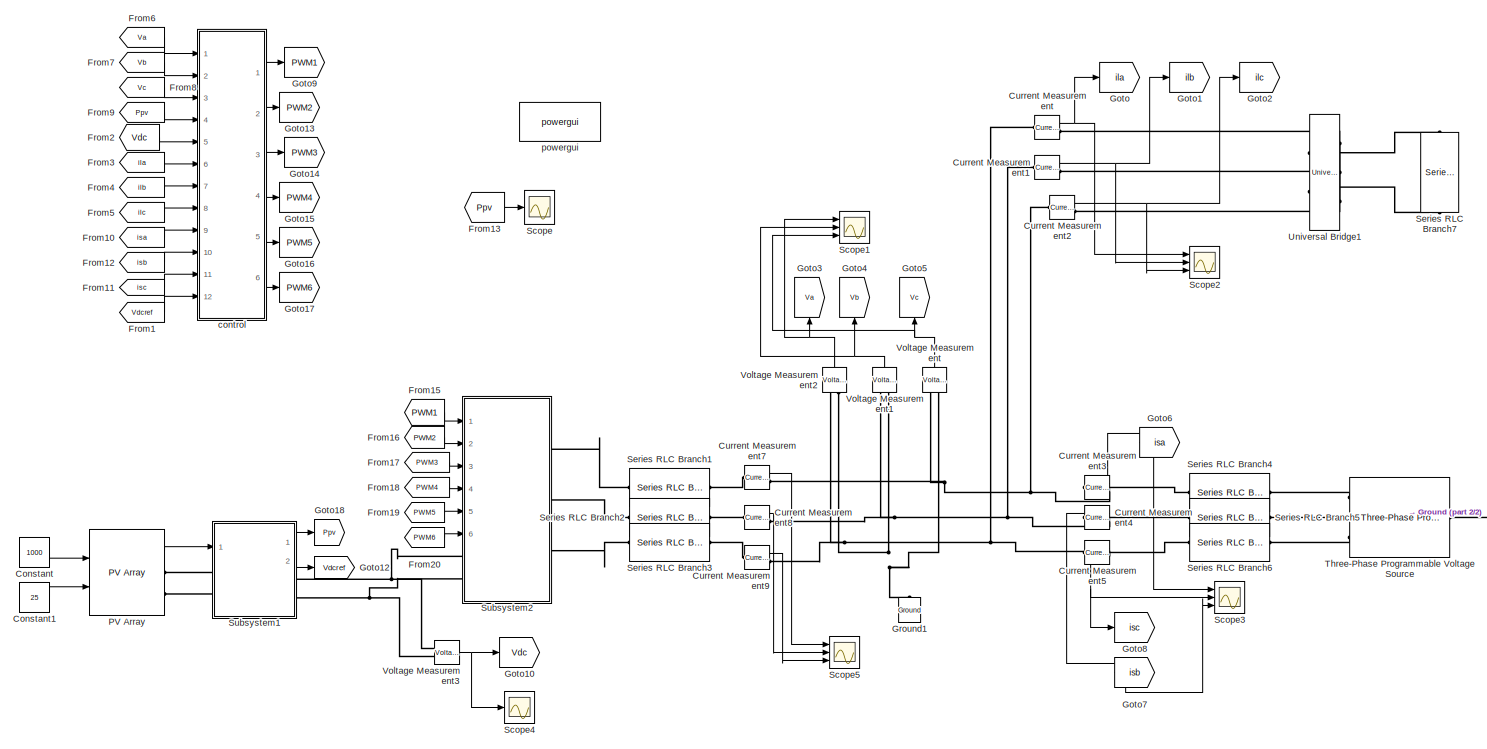
[diagram: root canvas - part 1/2, most of the canvas]
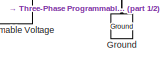
[diagram: root canvas - part 2/2, bottom right region]
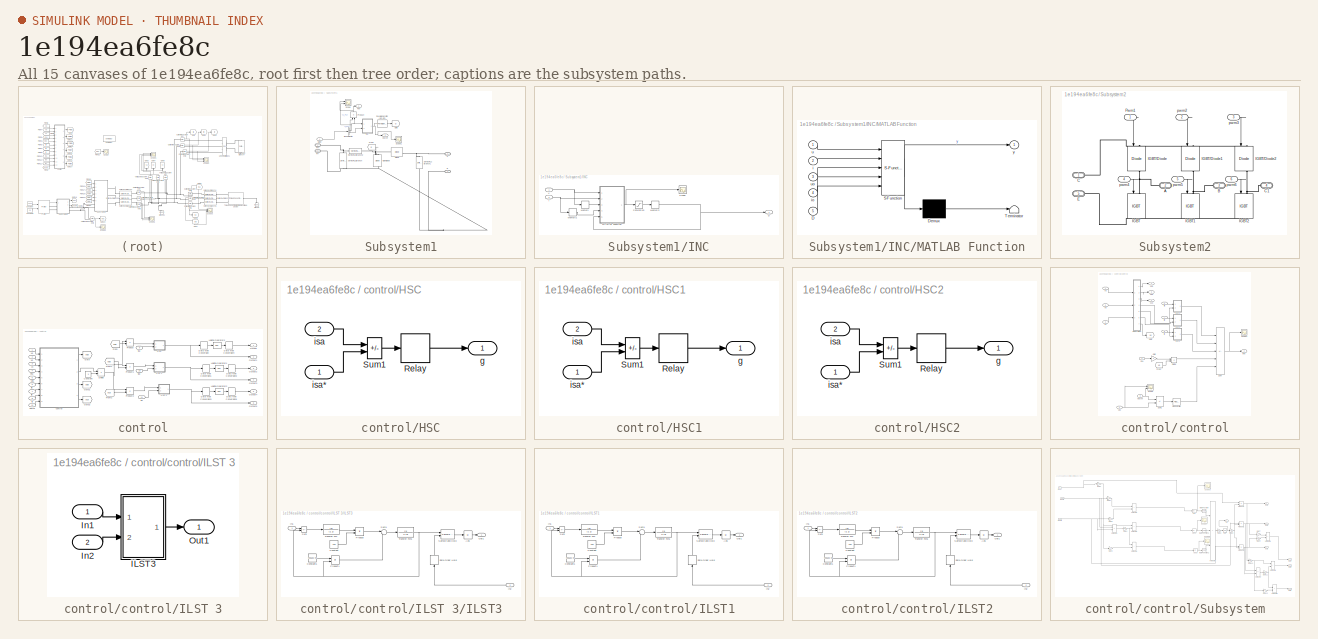
[diagram: thumbnail index - all 15 canvases of the model, root first then tree order]
MODEL slx_1e194ea6fe8c
KIND model
CONFIG AbsTol = auto
CONFIG EnableMultiTasking = off
CONFIG FixedStep = 1e-6
CONFIG MaxStep = auto
CONFIG MinStep = auto
CONFIG RelTol = 1e-3
CONFIG SampleTimeConstraint = Unconstrained
CONFIG SolverName = VariableStepAuto
CONFIG StartTime = 0.0
CONFIG StopTime = 10
BLOCK [Constant] Constant
  Value = 1000
BLOCK [Constant] Constant1
  Value = 25
BLOCK [Reference] Current Measurement  REF=spsCurrentMeasurementLib/Current Measurement
  Ports = [0, 1, 0, 0, 0, 1, 1]
  SourceBlock = spsCurrentMeasurementLib/Current Measurement
  SourceProductBaseCode = PS
  SourceType = Current Measurement
  UserDataPersistent = on
BLOCK [Reference] Current Measurement1  REF=spsCurrentMeasurementLib/Current Measurement
  Ports = [0, 1, 0, 0, 0, 1, 1]
  SourceBlock = spsCurrentMeasurementLib/Current Measurement
  SourceProductBaseCode = PS
  SourceType = Current Measurement
  UserDataPersistent = on
BLOCK [Reference] Current Measurement2  REF=spsCurrentMeasurementLib/Current Measurement
  Ports = [0, 1, 0, 0, 0, 1, 1]
  SourceBlock = spsCurrentMeasurementLib/Current Measurement
  SourceProductBaseCode = PS
  SourceType = Current Measurement
  UserDataPersistent = on
BLOCK [Reference] Current Measurement3  REF=spsCurrentMeasurementLib/Current Measurement
  NameLocation = top
  Ports = [0, 1, 0, 0, 0, 1, 1]
  SourceBlock = spsCurrentMeasurementLib/Current Measurement
  SourceProductBaseCode = PS
  SourceType = Current Measurement
  UserDataPersistent = on
BLOCK [Reference] Current Measurement4  REF=spsCurrentMeasurementLib/Current Measurement
  NameLocation = top
  Ports = [0, 1, 0, 0, 0, 1, 1]
  SourceBlock = spsCurrentMeasurementLib/Current Measurement
  SourceProductBaseCode = PS
  SourceType = Current Measurement
  UserDataPersistent = on
BLOCK [Reference] Current Measurement5  REF=spsCurrentMeasurementLib/Current Measurement
  NameLocation = top
  Ports = [0, 1, 0, 0, 0, 1, 1]
  SourceBlock = spsCurrentMeasurementLib/Current Measurement
  SourceProductBaseCode = PS
  SourceType = Current Measurement
  UserDataPersistent = on
BLOCK [Reference] Current Measurement7  REF=spsCurrentMeasurementLib/Current Measurement
  Ports = [0, 1, 0, 0, 0, 1, 1]
  SourceBlock = spsCurrentMeasurementLib/Current Measurement
  SourceProductBaseCode = PS
  SourceType = Current Measurement
  UserDataPersistent = on
BLOCK [Reference] Current Measurement8  REF=spsCurrentMeasurementLib/Current Measurement
  Ports = [0, 1, 0, 0, 0, 1, 1]
  SourceBlock = spsCurrentMeasurementLib/Current Measurement
  SourceProductBaseCode = PS
  SourceType = Current Measurement
  UserDataPersistent = on
BLOCK [Reference] Current Measurement9  REF=spsCurrentMeasurementLib/Current Measurement
  Ports = [0, 1, 0, 0, 0, 1, 1]
  SourceBlock = spsCurrentMeasurementLib/Current Measurement
  SourceProductBaseCode = PS
  SourceType = Current Measurement
  UserDataPersistent = on
BLOCK [From] From1
  GotoTag = Vdcref
BLOCK [From] From10
  GotoTag = isa
BLOCK [From] From11
  GotoTag = isc
BLOCK [From] From12
  GotoTag = isb
BLOCK [From] From13
  GotoTag = Ppv
BLOCK [From] From15
  GotoTag = PWM1
BLOCK [From] From16
  GotoTag = PWM2
BLOCK [From] From17
  GotoTag = PWM3
BLOCK [From] From18
  GotoTag = PWM4
BLOCK [From] From19
  GotoTag = PWM5
BLOCK [From] From2
  GotoTag = Vdc
BLOCK [From] From20
  GotoTag = PWM6
BLOCK [From] From3
  GotoTag = ila
BLOCK [From] From4
  GotoTag = ilb
BLOCK [From] From5
  GotoTag = ilc
BLOCK [From] From6
  GotoTag = Va
BLOCK [From] From7
  GotoTag = Vb
BLOCK [From] From8
  GotoTag = Vc
BLOCK [From] From9
  GotoTag = Ppv
BLOCK [Goto] Goto
  GotoTag = ila
BLOCK [Goto] Goto1
  GotoTag = ilb
BLOCK [Goto] Goto10
  GotoTag = Vdc
BLOCK [Goto] Goto12
  GotoTag = Vdcref
BLOCK [Goto] Goto13
  GotoTag = PWM2
BLOCK [Goto] Goto14
  GotoTag = PWM3
BLOCK [Goto] Goto15
  GotoTag = PWM4
BLOCK [Goto] Goto16
  GotoTag = PWM5
BLOCK [Goto] Goto17
  GotoTag = PWM6
BLOCK [Goto] Goto18
  GotoTag = Ppv
BLOCK [Goto] Goto2
  GotoTag = ilc
BLOCK [Goto] Goto3
  GotoTag = Va
  NameLocation = right
BLOCK [Goto] Goto4
  GotoTag = Vb
  NameLocation = right
BLOCK [Goto] Goto5
  GotoTag = Vc
  NameLocation = right
BLOCK [Goto] Goto6
  GotoTag = isa
BLOCK [Goto] Goto7
  GotoTag = isb
BLOCK [Goto] Goto8
  GotoTag = isc
BLOCK [Goto] Goto9
  GotoTag = PWM1
BLOCK [Reference] Ground  REF=spsGroundLib/Ground
  NameLocation = right
  Ports = [0, 0, 0, 0, 0, 1]
  SourceBlock = spsGroundLib/Ground
  SourceProductBaseCode = PS
  SourceType = Ground
BLOCK [Reference] Ground1  REF=spsGroundLib/Ground
  NameLocation = right
  Ports = [0, 0, 0, 0, 0, 1]
  SourceBlock = spsGroundLib/Ground
  SourceProductBaseCode = PS
  SourceType = Ground
BLOCK [Reference] PV Array  REF=spsPVArrayLib/PV Array
  Ports = [2, 1, 0, 0, 0, 0, 2]
  SourceBlock = spsPVArrayLib/PV Array
  SourceProductBaseCode = PS
  SourceType = PV array
BLOCK [Scope] Scope
  Floating = off
  NumInputPorts = 1
  Ports = [1]
  ScopeSpecificationString = Simulink.scopes.TimeScopeBlockCfg('CurrentConfiguration', extmgr.ConfigurationSet(extmgr.Configuration('Core','General UI',true),extmgr.Configuration('Core','Source UI',true),extmgr.Configuration('Sources','WiredSimulink',true,'DataLoggingVariableName','ScopeData1'),extmgr.Configuration('Visuals','Time Domain',true,'SerializedDisplays',{struct('MinYLimReal','-53729.06917','MaxYLimReal','116584.042...<+1542ch>
BLOCK [Scope] Scope1
  Floating = off
  NumInputPorts = 3
  Ports = [3]
  ScopeSpecificationString = Simulink.scopes.TimeScopeBlockCfg('CurrentConfiguration', extmgr.ConfigurationSet(extmgr.Configuration('Core','General UI',true),extmgr.Configuration('Core','Source UI',true),extmgr.Configuration('Sources','WiredSimulink',true,'DataLoggingVariableName','ScopeData1'),extmgr.Configuration('Visuals','Time Domain',true,'SerializedDisplays',{struct('MinYLimReal','-40.95601','MaxYLimReal','41.73398','YL...<+2840ch>
BLOCK [Scope] Scope2
  Floating = off
  NumInputPorts = 3
  Ports = [3]
  ScopeSpecificationString = Simulink.scopes.TimeScopeBlockCfg('CurrentConfiguration', extmgr.ConfigurationSet(extmgr.Configuration('Core','General UI',true),extmgr.Configuration('Core','Source UI',true),extmgr.Configuration('Sources','WiredSimulink',true,'DataLoggingVariableName','ScopeData2'),extmgr.Configuration('Visuals','Time Domain',true,'SerializedDisplays',{struct('MinYLimReal','-56.02248','MaxYLimReal','53.19966','YL...<+2864ch>
BLOCK [Scope] Scope3
  Floating = off
  NumInputPorts = 3
  Ports = [3]
  ScopeSpecificationString = Simulink.scopes.TimeScopeBlockCfg('CurrentConfiguration', extmgr.ConfigurationSet(extmgr.Configuration('Core','General UI',true),extmgr.Configuration('Core','Source UI',true),extmgr.Configuration('Sources','WiredSimulink',true,'DataLoggingVariableName','ScopeData3'),extmgr.Configuration('Visuals','Time Domain',true,'SerializedDisplays',{struct('MinYLimReal','-60.28132','MaxYLimReal','62.87009','YL...<+2892ch>
BLOCK [Scope] Scope4
  Floating = off
  NumInputPorts = 1
  Ports = [1]
  ScopeSpecificationString = Simulink.scopes.TimeScopeBlockCfg('CurrentConfiguration', extmgr.ConfigurationSet(extmgr.Configuration('Core','General UI',true),extmgr.Configuration('Core','Source UI',true),extmgr.Configuration('Sources','WiredSimulink',true,'DataLoggingVariableName','ScopeData1'),extmgr.Configuration('Visuals','Time Domain',true,'SerializedDisplays',{struct('MinYLimReal','-14.53089','MaxYLimReal','130.77798','Y...<+1540ch>
BLOCK [Scope] Scope5
  Floating = off
  NumInputPorts = 3
  Ports = [3]
  ScopeSpecificationString = Simulink.scopes.TimeScopeBlockCfg('CurrentConfiguration', extmgr.ConfigurationSet(extmgr.Configuration('Core','General UI',true),extmgr.Configuration('Core','Source UI',true),extmgr.Configuration('Sources','WiredSimulink',true,'DataLoggingVariableName','ScopeData5'),extmgr.Configuration('Visuals','Time Domain',true,'SerializedDisplays',{struct('MinYLimReal','-25.56295','MaxYLimReal','22.51185','YL...<+2841ch>
BLOCK [Reference] Series RLC Branch1  REF=spsSeriesRLCBranchLib/Series RLC Branch
  Ports = [0, 0, 0, 0, 0, 1, 1]
  SourceBlock = spsSeriesRLCBranchLib/Series RLC Branch
  SourceProductBaseCode = PS
  SourceType = Series RLC Branch
BLOCK [Reference] Series RLC Branch2  REF=spsSeriesRLCBranchLib/Series RLC Branch
  Ports = [0, 0, 0, 0, 0, 1, 1]
  SourceBlock = spsSeriesRLCBranchLib/Series RLC Branch
  SourceProductBaseCode = PS
  SourceType = Series RLC Branch
BLOCK [Reference] Series RLC Branch3  REF=spsSeriesRLCBranchLib/Series RLC Branch
  Ports = [0, 0, 0, 0, 0, 1, 1]
  SourceBlock = spsSeriesRLCBranchLib/Series RLC Branch
  SourceProductBaseCode = PS
  SourceType = Series RLC Branch
BLOCK [Reference] Series RLC Branch4  REF=spsSeriesRLCBranchLib/Series RLC Branch
  Ports = [0, 0, 0, 0, 0, 1, 1]
  SourceBlock = spsSeriesRLCBranchLib/Series RLC Branch
  SourceProductBaseCode = PS
  SourceType = Series RLC Branch
BLOCK [Reference] Series RLC Branch5  REF=spsSeriesRLCBranchLib/Series RLC Branch
  Ports = [0, 0, 0, 0, 0, 1, 1]
  SourceBlock = spsSeriesRLCBranchLib/Series RLC Branch
  SourceProductBaseCode = PS
  SourceType = Series RLC Branch
BLOCK [Reference] Series RLC Branch6  REF=spsSeriesRLCBranchLib/Series RLC Branch
  Ports = [0, 0, 0, 0, 0, 1, 1]
  SourceBlock = spsSeriesRLCBranchLib/Series RLC Branch
  SourceProductBaseCode = PS
  SourceType = Series RLC Branch
BLOCK [Reference] Series RLC Branch7  REF=spsSeriesRLCBranchLib/Series RLC Branch
  NameLocation = right
  Ports = [0, 0, 0, 0, 0, 1, 1]
  SourceBlock = spsSeriesRLCBranchLib/Series RLC Branch
  SourceProductBaseCode = PS
  SourceType = Series RLC Branch
BLOCK [SubSystem] Subsystem1
  Ports = [1, 2, 0, 0, 0, 2, 2]
  RequestExecContextInheritance = off
BLOCK [BusSelector] Subsystem1/Bus Selector
  OutputSignals = V_PV,I_PV
  Ports = [1, 2]
BLOCK [PMIOPort] Subsystem1/C
  NameLocation = top
  Port = 3
  Side = Right
BLOCK [Reference] Subsystem1/Diode  REF=spsDiodeLib/Diode
  Ports = [0, 1, 0, 0, 0, 1, 1]
  SourceBlock = spsDiodeLib/Diode
  SourceProductBaseCode = PS
  SourceType = Diode
BLOCK [PMIOPort] Subsystem1/E
  NameLocation = top
  Port = 4
  Side = Right
BLOCK [From] Subsystem1/From
  GotoTag = G
BLOCK [Goto] Subsystem1/Goto
  GotoTag = G
BLOCK [Reference] Subsystem1/IGBT//Diode  REF=spsIGBTDiodeLib/IGBT//Diode
  NameLocation = left
  Ports = [1, 1, 0, 0, 0, 1, 1]
  SourceBlock = spsIGBTDiodeLib/IGBT//Diode
  SourceProductBaseCode = PS
  SourceType = IGBT/Diode
BLOCK [SubSystem] Subsystem1/INC
  Ports = [2, 1]
  RequestExecContextInheritance = off
BLOCK [Outport] Subsystem1/INC/D
BLOCK [Inport] Subsystem1/INC/I
  Port = 2
BLOCK [SubSystem] Subsystem1/INC/MATLAB Function
  ErrorFcn = Stateflow.Translate.translate
  PermitHierarchicalResolution = ExplicitOnly
  Ports = [5, 1]
  RequestExecContextInheritance = off
  SFBlockType = MATLAB Function
  TreatAsAtomicUnit = on
BLOCK [Demux] Subsystem1/INC/MATLAB Function/ Demux 
  Outputs = 1
  Ports = [1, 1]
BLOCK [S-Function] Subsystem1/INC/MATLAB Function/ SFunction 
  EnableBusSupport = on
  FunctionName = sf_sfun
  PortCounts = [5 2]
  Ports = [5, 2]
  SFcnIsStateOwnerBlock = off
  SFunctionDeploymentMode = off
  Tag = Stateflow S-Function 2
BLOCK [Terminator] Subsystem1/INC/MATLAB Function/ Terminator 
BLOCK [Inport] Subsystem1/INC/MATLAB Function/D
  Port = 5
BLOCK [Inport] Subsystem1/INC/MATLAB Function/i
  Port = 2
BLOCK [Inport] Subsystem1/INC/MATLAB Function/io
  Port = 4
BLOCK [Inport] Subsystem1/INC/MATLAB Function/u
BLOCK [Inport] Subsystem1/INC/MATLAB Function/uo
  Port = 3
BLOCK [Outport] Subsystem1/INC/MATLAB Function/y
BLOCK [Memory] Subsystem1/INC/Memory
  InheritSampleTime = on
BLOCK [Memory] Subsystem1/INC/Memory1
  InheritSampleTime = on
BLOCK [Memory] Subsystem1/INC/Memory2
  InheritSampleTime = on
BLOCK [Saturate] Subsystem1/INC/Saturation
  LowerLimit = 0
  UpperLimit = 0.9
BLOCK [Scope] Subsystem1/INC/Scope
  Floating = off
  NumInputPorts = 1
  Ports = [1]
  ScopeSpecificationString = Simulink.scopes.TimeScopeBlockCfg('CurrentConfiguration', extmgr.ConfigurationSet(extmgr.Configuration('Core','General UI',true),extmgr.Configuration('Core','Source UI',true),extmgr.Configuration('Sources','WiredSimulink',true,'DataLoggingVariableName','ScopeData4','DataLoggingSaveFormat','Array','DataLoggingDecimation','1','DataLoggingDecimateData',true),extmgr.Configuration('Visuals','Time Domai...<+1660ch>
BLOCK [Inport] Subsystem1/INC/V
BLOCK [Inport] Subsystem1/Mppt
BLOCK [PMIOPort] Subsystem1/PV+
  Side = Left
BLOCK [PMIOPort] Subsystem1/PV-
  Port = 2
  Side = Left
BLOCK [Reference] Subsystem1/PWM Generator (DC-DC)  REF=spsPWMGeneratorDCDCLib/PWM Generator
(DC-DC)
  Ports = [1, 1]
  SourceBlock = spsPWMGeneratorDCDCLib/PWM Generator\n(DC-DC)
  SourceProductBaseCode = PS
  SourceType = PWM Generator (DC-DC)
BLOCK [Outport] Subsystem1/Ppv
BLOCK [Product] Subsystem1/Product
  NameLocation = right
  Ports = [2, 1]
BLOCK [Scope] Subsystem1/Scope
  Floating = off
  NumInputPorts = 2
  Ports = [2]
  ScopeSpecificationString = Simulink.scopes.TimeScopeBlockCfg('CurrentConfiguration', extmgr.ConfigurationSet(extmgr.Configuration('Core','General UI',true),extmgr.Configuration('Core','Source UI',true),extmgr.Configuration('Sources','WiredSimulink',true,'DataLoggingVariableName','ScopeData2'),extmgr.Configuration('Visuals','Time Domain',true,'SerializedDisplays',{struct('MinYLimReal','-19471.20915','MaxYLimReal','19911.2283...<+2115ch>
BLOCK [Scope] Subsystem1/Scope1
  Floating = off
  NumInputPorts = 1
  Ports = [1]
  ScopeSpecificationString = Simulink.scopes.TimeScopeBlockCfg('CurrentConfiguration', extmgr.ConfigurationSet(extmgr.Configuration('Core','General UI',true),extmgr.Configuration('Core','Source UI',true),extmgr.Configuration('Sources','WiredSimulink',true,'DataLoggingVariableName','ScopeData3'),extmgr.Configuration('Visuals','Time Domain',true,'SerializedDisplays',{struct('MinYLimReal','3.86134','MaxYLimReal','4.63057','YLabe...<+1487ch>
BLOCK [Reference] Subsystem1/Series RLC Branch  REF=spsSeriesRLCBranchLib/Series RLC Branch
  NameLocation = left
  Ports = [0, 0, 0, 0, 0, 1, 1]
  SourceBlock = spsSeriesRLCBranchLib/Series RLC Branch
  SourceProductBaseCode = PS
  SourceType = Series RLC Branch
BLOCK [Reference] Subsystem1/Series RLC Branch1  REF=spsSeriesRLCBranchLib/Series RLC Branch
  NameLocation = left
  Ports = [0, 0, 0, 0, 0, 1, 1]
  SourceBlock = spsSeriesRLCBranchLib/Series RLC Branch
  SourceProductBaseCode = PS
  SourceType = Series RLC Branch
BLOCK [Reference] Subsystem1/Series RLC Branch2  REF=spsSeriesRLCBranchLib/Series RLC Branch
  Ports = [0, 0, 0, 0, 0, 1, 1]
  SourceBlock = spsSeriesRLCBranchLib/Series RLC Branch
  SourceProductBaseCode = PS
  SourceType = Series RLC Branch
BLOCK [Outport] Subsystem1/Vdcref
  Port = 2
BLOCK [SubSystem] Subsystem2
  Ports = [6, 0, 0, 0, 0, 2, 3]
  RequestExecContextInheritance = off
BLOCK [PMIOPort] Subsystem2/A
  NameLocation = top
  Port = 2
  Side = Right
BLOCK [PMIOPort] Subsystem2/B
  NameLocation = top
  Port = 3
  Side = Right
BLOCK [PMIOPort] Subsystem2/C
  Side = Left
BLOCK [PMIOPort] Subsystem2/C1
  NameLocation = top
  Port = 4
  Side = Right
BLOCK [PMIOPort] Subsystem2/E
  Port = 5
  Side = Left
BLOCK [Reference] Subsystem2/IGBT  REF=spsIGBTLib/IGBT
  NameLocation = left
  Ports = [1, 1, 0, 0, 0, 1, 1]
  SourceBlock = spsIGBTLib/IGBT
  SourceProductBaseCode = PS
  SourceType = IGBT
BLOCK [Reference] Subsystem2/IGBT//Diode  REF=spsIGBTDiodeLib/IGBT//Diode
  NameLocation = left
  Ports = [1, 1, 0, 0, 0, 1, 1]
  SourceBlock = spsIGBTDiodeLib/IGBT//Diode
  SourceProductBaseCode = PS
  SourceType = IGBT/Diode
BLOCK [Reference] Subsystem2/IGBT//Diode1  REF=spsIGBTDiodeLib/IGBT//Diode
  NameLocation = left
  Ports = [1, 1, 0, 0, 0, 1, 1]
  SourceBlock = spsIGBTDiodeLib/IGBT//Diode
  SourceProductBaseCode = PS
  SourceType = IGBT/Diode
BLOCK [Reference] Subsystem2/IGBT//Diode2  REF=spsIGBTDiodeLib/IGBT//Diode
  NameLocation = left
  Ports = [1, 1, 0, 0, 0, 1, 1]
  SourceBlock = spsIGBTDiodeLib/IGBT//Diode
  SourceProductBaseCode = PS
  SourceType = IGBT/Diode
BLOCK [Reference] Subsystem2/IGBT1  REF=spsIGBTLib/IGBT
  NameLocation = left
  Ports = [1, 1, 0, 0, 0, 1, 1]
  SourceBlock = spsIGBTLib/IGBT
  SourceProductBaseCode = PS
  SourceType = IGBT
BLOCK [Reference] Subsystem2/IGBT2  REF=spsIGBTLib/IGBT
  NameLocation = left
  Ports = [1, 1, 0, 0, 0, 1, 1]
  SourceBlock = spsIGBTLib/IGBT
  SourceProductBaseCode = PS
  SourceType = IGBT
BLOCK [Inport] Subsystem2/Pwm1
BLOCK [Inport] Subsystem2/pwm2
  Port = 2
BLOCK [Inport] Subsystem2/pwm3
  Port = 3
BLOCK [Inport] Subsystem2/pwm4
  Port = 4
BLOCK [Inport] Subsystem2/pwm5
  Port = 5
BLOCK [Inport] Subsystem2/pwm6
  Port = 6
BLOCK [Reference] Three-Phase Programmable Voltage Source  REF=spsThreePhaseProgrammableVoltageSourceLib/Three-Phase
Programmable
Voltage Source
  NameLocation = top
  Ports = [0, 0, 0, 0, 0, 1, 3]
  SourceBlock = spsThreePhaseProgrammableVoltageSourceLib/Three-Phase\nProgrammable\nVoltage Source
  SourceProductBaseCode = PS
  SourceType = Three-Phase Programmable Voltage Source
BLOCK [Reference] Universal Bridge1  REF=spsUniversalBridgeLib/Universal Bridge
  Ports = [0, 0, 0, 0, 0, 3, 2]
  SourceBlock = spsUniversalBridgeLib/Universal Bridge
  SourceProductBaseCode = PS
  SourceType = Universal Bridge
BLOCK [Reference] Voltage Measurement  REF=spsVoltageMeasurementLib/Voltage Measurement
  NameLocation = right
  Ports = [0, 1, 0, 0, 0, 2]
  SourceBlock = spsVoltageMeasurementLib/Voltage Measurement
  SourceProductBaseCode = PS
  SourceType = Voltage Measurement
  UserDataPersistent = on
BLOCK [Reference] Voltage Measurement1  REF=spsVoltageMeasurementLib/Voltage Measurement
  NameLocation = right
  Ports = [0, 1, 0, 0, 0, 2]
  SourceBlock = spsVoltageMeasurementLib/Voltage Measurement
  SourceProductBaseCode = PS
  SourceType = Voltage Measurement
  UserDataPersistent = on
BLOCK [Reference] Voltage Measurement2  REF=spsVoltageMeasurementLib/Voltage Measurement
  NameLocation = right
  Ports = [0, 1, 0, 0, 0, 2]
  SourceBlock = spsVoltageMeasurementLib/Voltage Measurement
  SourceProductBaseCode = PS
  SourceType = Voltage Measurement
  UserDataPersistent = on
BLOCK [Reference] Voltage Measurement3  REF=spsVoltageMeasurementLib/Voltage Measurement
  Ports = [0, 1, 0, 0, 0, 2]
  SourceBlock = spsVoltageMeasurementLib/Voltage Measurement
  SourceProductBaseCode = PS
  SourceType = Voltage Measurement
  UserDataPersistent = on
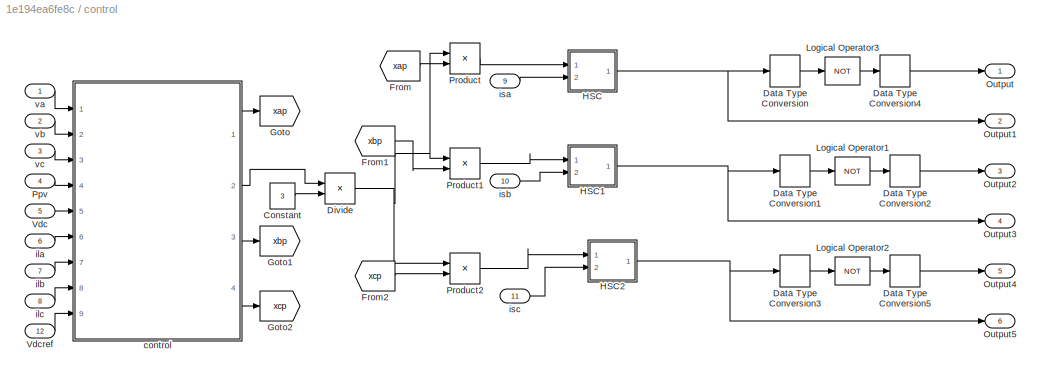
BLOCK [SubSystem] control
  Ports = [12, 6]
  RequestExecContextInheritance = off
BLOCK [Constant] control/Constant
  Value = 3
BLOCK [DataTypeConversion] control/Data Type Conversion
  OutDataTypeStr = boolean
BLOCK [DataTypeConversion] control/Data Type Conversion1
  OutDataTypeStr = boolean
BLOCK [DataTypeConversion] control/Data Type Conversion2
  OutDataTypeStr = double
BLOCK [DataTypeConversion] control/Data Type Conversion3
  OutDataTypeStr = boolean
BLOCK [DataTypeConversion] control/Data Type Conversion4
  OutDataTypeStr = double
BLOCK [DataTypeConversion] control/Data Type Conversion5
  OutDataTypeStr = double
BLOCK [Product] control/Divide
  Inputs = */
  Ports = [2, 1]
BLOCK [From] control/From
  GotoTag = xap
BLOCK [From] control/From1
  GotoTag = xbp
BLOCK [From] control/From2
  GotoTag = xcp
BLOCK [Goto] control/Goto
  GotoTag = xap
BLOCK [Goto] control/Goto1
  GotoTag = xbp
BLOCK [Goto] control/Goto2
  GotoTag = xcp
BLOCK [SubSystem] control/HSC
  Ports = [2, 1]
  RequestExecContextInheritance = off
BLOCK [Relay] control/HSC/Relay
  OffSwitchValue = -h/2
  OnSwitchValue = h/2
  ZeroCross = off
BLOCK [Sum] control/HSC/Sum1
  IconShape = rectangular
  InputSameDT = on
  Inputs = -+
  OutDataTypeStr = Inherit: Same as first input
  Ports = [2, 1]
  SaturateOnIntegerOverflow = on
BLOCK [Outport] control/HSC/g
  InitialOutput = 0
BLOCK [Inport] control/HSC/isa
  Port = 2
BLOCK [Inport] control/HSC/isa*
BLOCK [SubSystem] control/HSC1
  Ports = [2, 1]
  RequestExecContextInheritance = off
BLOCK [Relay] control/HSC1/Relay
  OffSwitchValue = -h/2
  OnSwitchValue = h/2
BLOCK [Sum] control/HSC1/Sum1
  IconShape = rectangular
  InputSameDT = on
  Inputs = -+
  OutDataTypeStr = Inherit: Same as first input
  Ports = [2, 1]
  SaturateOnIntegerOverflow = on
BLOCK [Outport] control/HSC1/g
  InitialOutput = 0
BLOCK [Inport] control/HSC1/isa
  Port = 2
BLOCK [Inport] control/HSC1/isa*
BLOCK [SubSystem] control/HSC2
  Ports = [2, 1]
  RequestExecContextInheritance = off
BLOCK [Relay] control/HSC2/Relay
  OffSwitchValue = -h/2
  OnSwitchValue = h/2
BLOCK [Sum] control/HSC2/Sum1
  IconShape = rectangular
  InputSameDT = on
  Inputs = -+
  OutDataTypeStr = Inherit: Same as first input
  Ports = [2, 1]
  SaturateOnIntegerOverflow = on
BLOCK [Outport] control/HSC2/g
  InitialOutput = 0
BLOCK [Inport] control/HSC2/isa
  Port = 2
BLOCK [Inport] control/HSC2/isa*
BLOCK [Logic] control/Logical Operator1
  AllPortsSameDT = off
  Operator = NOT
  OutDataTypeStr = boolean
  Ports = [1, 1]
BLOCK [Logic] control/Logical Operator2
  AllPortsSameDT = off
  Operator = NOT
  OutDataTypeStr = boolean
  Ports = [1, 1]
BLOCK [Logic] control/Logical Operator3
  AllPortsSameDT = off
  Operator = NOT
  OutDataTypeStr = boolean
  Ports = [1, 1]
BLOCK [Outport] control/Output
BLOCK [Outport] control/Output1
  Port = 2
BLOCK [Outport] control/Output2
  Port = 3
BLOCK [Outport] control/Output3
  Port = 4
BLOCK [Outport] control/Output4
  Port = 5
BLOCK [Outport] control/Output5
  Port = 6
BLOCK [Inport] control/Ppv
  Port = 4
BLOCK [Product] control/Product
  Ports = [2, 1]
BLOCK [Product] control/Product1
  Ports = [2, 1]
BLOCK [Product] control/Product2
  Ports = [2, 1]
BLOCK [Inport] control/Vdc
  Port = 5
BLOCK [Inport] control/Vdcref
  Port = 12
BLOCK [SubSystem] control/control
  Ports = [9, 4]
  RequestExecContextInheritance = off
BLOCK [Product] control/control/Divide
  Inputs = */
  Ports = [2, 1]
BLOCK [From] control/control/From
  GotoTag = Vp
BLOCK [Gain] control/control/Gain
  Gain = 2
BLOCK [Goto] control/control/Goto
  GotoTag = Vp
BLOCK [SubSystem] control/control/ILST 3
  Ports = [2, 1]
  RequestExecContextInheritance = off
BLOCK [SubSystem] control/control/ILST 3/ILST3
  Ports = [2, 1]
  RequestExecContextInheritance = off
BLOCK [Abs] control/control/ILST 3/ILST3/Abs
  SaturateOnIntegerOverflow = off
  ZeroCross = off
BLOCK [Constant] control/control/ILST 3/ILST3/Constant
  Value = 100
BLOCK [Constant] control/control/ILST 3/ILST3/Constant1
  Value = -98683.93
BLOCK [Inport] control/control/ILST 3/ILST3/In1
BLOCK [Inport] control/control/ILST 3/ILST3/In2
  Port = 2
BLOCK [Outport] control/control/ILST 3/ILST3/Out1
BLOCK [Product] control/control/ILST 3/ILST3/Product
  Ports = [2, 1]
BLOCK [Product] control/control/ILST 3/ILST3/Product1
  Ports = [2, 1]
BLOCK [Reference] control/control/ILST 3/ILST3/Sample and Hold  REF=spsSampleandHoldLib/Sample and
Hold
  Ports = [2, 1]
  SourceBlock = spsSampleandHoldLib/Sample and\nHold
  SourceProductBaseCode = PS
  SourceType = Sample and Hold
BLOCK [Sum] control/control/ILST 3/ILST3/Sum
  IconShape = rectangular
  Inputs = +-
  Ports = [2, 1]
BLOCK [Sum] control/control/ILST 3/ILST3/Sum1
  Inputs = |++
  Ports = [2, 1]
BLOCK [TransferFcn] control/control/ILST 3/ILST3/Transfer Fcn
  Denominator = [1 1]
BLOCK [TransferFcn] control/control/ILST 3/ILST3/Transfer Fcn1
  Denominator = [1 0]
BLOCK [ZeroOrderHold] control/control/ILST 3/ILST3/Zero-Order Hold
  NameLocation = right
  SampleTime = -1
BLOCK [Inport] control/control/ILST 3/In1
BLOCK [Inport] control/control/ILST 3/In2
  Port = 2
BLOCK [Outport] control/control/ILST 3/Out1
BLOCK [SubSystem] control/control/ILST1
  Ports = [2, 1]
  RequestExecContextInheritance = off
BLOCK [Abs] control/control/ILST1/Abs
  SaturateOnIntegerOverflow = off
  ZeroCross = off
BLOCK [Constant] control/control/ILST1/Constant
  Value = 100
BLOCK [Constant] control/control/ILST1/Constant1
  Value = -98683.93
BLOCK [Inport] control/control/ILST1/In1
BLOCK [Inport] control/control/ILST1/In2
  Port = 2
BLOCK [Outport] control/control/ILST1/Out1
BLOCK [Product] control/control/ILST1/Product
  Ports = [2, 1]
BLOCK [Product] control/control/ILST1/Product1
  Ports = [2, 1]
BLOCK [Reference] control/control/ILST1/Sample and Hold  REF=spsSampleandHoldLib/Sample and
Hold
  Ports = [2, 1]
  SourceBlock = spsSampleandHoldLib/Sample and\nHold
  SourceProductBaseCode = PS
  SourceType = Sample and Hold
BLOCK [Sum] control/control/ILST1/Sum
  IconShape = rectangular
  Inputs = +-
  Ports = [2, 1]
BLOCK [Sum] control/control/ILST1/Sum1
  Inputs = |++
  Ports = [2, 1]
BLOCK [TransferFcn] control/control/ILST1/Transfer Fcn
  Denominator = [1 1]
BLOCK [TransferFcn] control/control/ILST1/Transfer Fcn1
  Denominator = [1 0]
BLOCK [ZeroOrderHold] control/control/ILST1/Zero-Order Hold
  NameLocation = right
  SampleTime = -1
BLOCK [SubSystem] control/control/ILST2
  Ports = [2, 1]
  RequestExecContextInheritance = off
BLOCK [Abs] control/control/ILST2/Abs
  SaturateOnIntegerOverflow = off
  ZeroCross = off
BLOCK [Constant] control/control/ILST2/Constant
  Value = 100
BLOCK [Constant] control/control/ILST2/Constant1
  Value = -98683.93
BLOCK [Inport] control/control/ILST2/In1
BLOCK [Inport] control/control/ILST2/In2
  Port = 2
BLOCK [Outport] control/control/ILST2/Out1
BLOCK [Product] control/control/ILST2/Product
  Ports = [2, 1]
BLOCK [Product] control/control/ILST2/Product1
  Ports = [2, 1]
BLOCK [Reference] control/control/ILST2/Sample and Hold  REF=spsSampleandHoldLib/Sample and
Hold
  Ports = [2, 1]
  SourceBlock = spsSampleandHoldLib/Sample and\nHold
  SourceProductBaseCode = PS
  SourceType = Sample and Hold
BLOCK [Sum] control/control/ILST2/Sum
  IconShape = rectangular
  Inputs = +-
  Ports = [2, 1]
BLOCK [Sum] control/control/ILST2/Sum1
  Inputs = |++
  Ports = [2, 1]
BLOCK [TransferFcn] control/control/ILST2/Transfer Fcn
  Denominator = [1 1]
BLOCK [TransferFcn] control/control/ILST2/Transfer Fcn1
  Denominator = [1 0]
BLOCK [ZeroOrderHold] control/control/ILST2/Zero-Order Hold
  NameLocation = right
  SampleTime = -1
BLOCK [Reference] control/control/PID Controller  REF=pid_lib/PID Controller
  Ports = [1, 1]
  SourceBlock = pid_lib/PID Controller
  SourceProductBaseCode = SL
  SourceType = PID 1dof
BLOCK [Inport] control/control/Ppv
  Port = 4
BLOCK [Scope] control/control/Scope
  Floating = off
  NumInputPorts = 2
  Ports = [2]
  ScopeSpecificationString = Simulink.scopes.TimeScopeBlockCfg('CurrentConfiguration', extmgr.ConfigurationSet(extmgr.Configuration('Core','General UI',true),extmgr.Configuration('Core','Source UI',true),extmgr.Configuration('Sources','WiredSimulink',true,'DataLoggingVariableName','ScopeData6'),extmgr.Configuration('Visuals','Time Domain',true,'SerializedDisplays',{struct('MinYLimReal','-47.69939','MaxYLimReal','429.29448','Y...<+2040ch>
BLOCK [Scope] control/control/Scope1
  Floating = off
  NumInputPorts = 1
  Ports = [1]
  ScopeSpecificationString = Simulink.scopes.TimeScopeBlockCfg('CurrentConfiguration', extmgr.ConfigurationSet(extmgr.Configuration('Core','General UI',true),extmgr.Configuration('Core','Source UI',true),extmgr.Configuration('Sources','WiredSimulink',true,'DataLoggingVariableName','ScopeData1'),extmgr.Configuration('Visuals','Time Domain',true,'SerializedDisplays',{struct('MinYLimReal','-778.42545','MaxYLimReal','-34.10118','...<+1501ch>
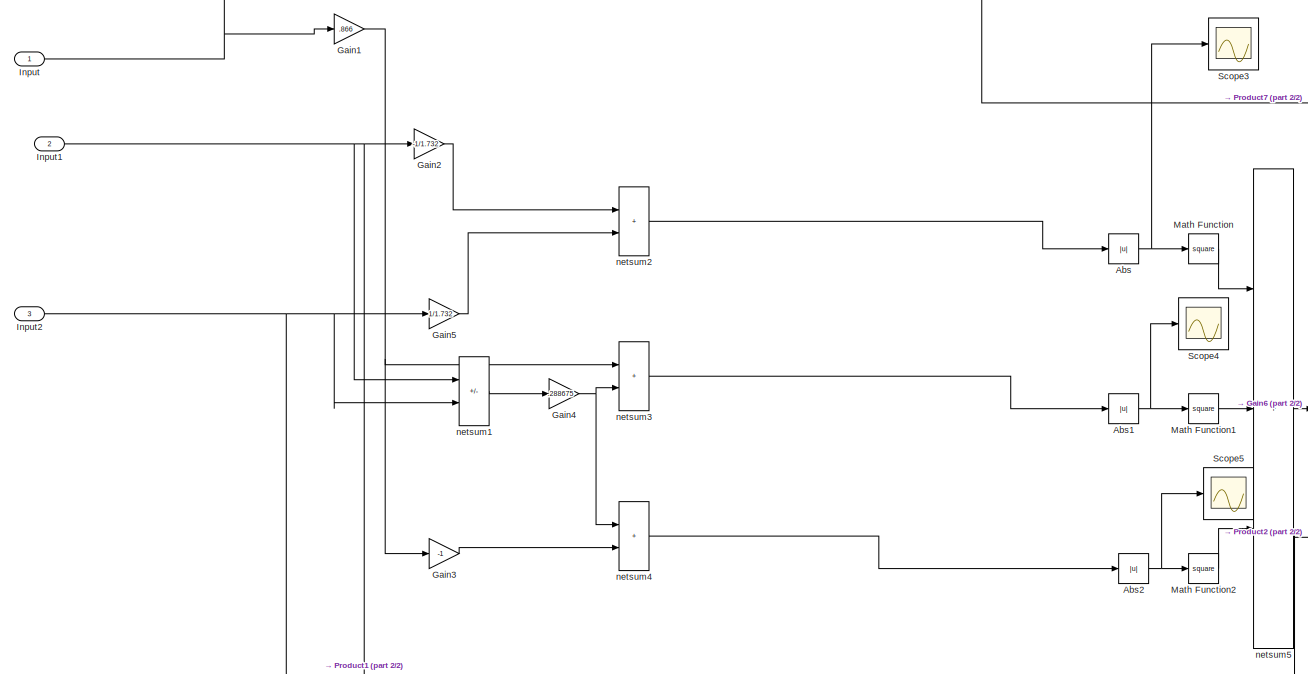
[diagram: control/control/Subsystem - part 1/2, central region]
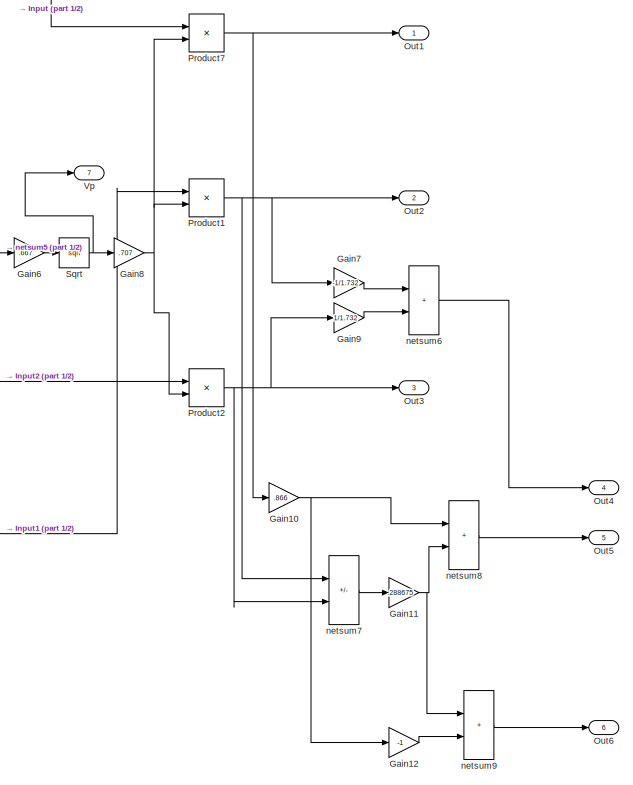
[diagram: control/control/Subsystem - part 2/2, right side, full height]
BLOCK [SubSystem] control/control/Subsystem
  Ports = [3, 7]
  RequestExecContextInheritance = off
BLOCK [Abs] control/control/Subsystem/Abs
  SaturateOnIntegerOverflow = off
BLOCK [Abs] control/control/Subsystem/Abs1
  SaturateOnIntegerOverflow = off
BLOCK [Abs] control/control/Subsystem/Abs2
  SaturateOnIntegerOverflow = off
BLOCK [Gain] control/control/Subsystem/Gain1
  Gain = .866
BLOCK [Gain] control/control/Subsystem/Gain10
  Gain = .866
BLOCK [Gain] control/control/Subsystem/Gain11
  Gain = .288675
BLOCK [Gain] control/control/Subsystem/Gain12
  Gain = -1
BLOCK [Gain] control/control/Subsystem/Gain2
  Gain = -1/1.732
BLOCK [Gain] control/control/Subsystem/Gain3
  Gain = -1
BLOCK [Gain] control/control/Subsystem/Gain4
  Gain = .288675
BLOCK [Gain] control/control/Subsystem/Gain5
  Gain = 1/1.732
BLOCK [Gain] control/control/Subsystem/Gain6
  Gain = .667
BLOCK [Gain] control/control/Subsystem/Gain7
  Gain = -1/1.732
BLOCK [Gain] control/control/Subsystem/Gain8
  Gain = .707
BLOCK [Gain] control/control/Subsystem/Gain9
  Gain = 1/1.732
BLOCK [Inport] control/control/Subsystem/Input
BLOCK [Inport] control/control/Subsystem/Input1
  Port = 2
BLOCK [Inport] control/control/Subsystem/Input2
  Port = 3
BLOCK [Math] control/control/Subsystem/Math Function
  Operator = square
  Ports = [1, 1]
  SignedPower = on
BLOCK [Math] control/control/Subsystem/Math Function1
  Operator = square
  Ports = [1, 1]
  SignedPower = on
BLOCK [Math] control/control/Subsystem/Math Function2
  Operator = square
  Ports = [1, 1]
  SignedPower = on
BLOCK [Outport] control/control/Subsystem/Out1
BLOCK [Outport] control/control/Subsystem/Out2
  Port = 2
BLOCK [Outport] control/control/Subsystem/Out3
  Port = 3
BLOCK [Outport] control/control/Subsystem/Out4
  Port = 4
BLOCK [Outport] control/control/Subsystem/Out5
  Port = 5
BLOCK [Outport] control/control/Subsystem/Out6
  Port = 6
BLOCK [Product] control/control/Subsystem/Product1
  Inputs = */
  Ports = [2, 1]
  RndMeth = Zero
BLOCK [Product] control/control/Subsystem/Product2
  Inputs = */
  Ports = [2, 1]
  RndMeth = Zero
BLOCK [Product] control/control/Subsystem/Product7
  Inputs = */
  Ports = [2, 1]
  RndMeth = Zero
BLOCK [Scope] control/control/Subsystem/Scope3
  Floating = off
  NumInputPorts = 1
  Ports = [1]
  ScopeSpecificationString = Simulink.scopes.TimeScopeBlockCfg('CurrentConfiguration', extmgr.ConfigurationSet(extmgr.Configuration('Core','General UI',true),extmgr.Configuration('Core','Source UI',true),extmgr.Configuration('Sources','WiredSimulink',true,'DataLogging',true,'DataLoggingVariableName','ScopeData3','DataLoggingSaveFormat','StructureWithTime','DataLoggingDecimation','1','DataLoggingDecimateData',true),extmgr.Conf...<+1671ch>
BLOCK [Scope] control/control/Subsystem/Scope4
  Floating = off
  NumInputPorts = 1
  Ports = [1]
  ScopeSpecificationString = Simulink.scopes.TimeScopeBlockCfg('CurrentConfiguration', extmgr.ConfigurationSet(extmgr.Configuration('Core','General UI',true),extmgr.Configuration('Core','Source UI',true),extmgr.Configuration('Sources','WiredSimulink',true,'DataLogging',true,'DataLoggingVariableName','ScopeData4','DataLoggingSaveFormat','StructureWithTime','DataLoggingDecimation','1','DataLoggingDecimateData',true),extmgr.Conf...<+1671ch>
BLOCK [Scope] control/control/Subsystem/Scope5
  Floating = off
  NumInputPorts = 1
  Ports = [1]
  ScopeSpecificationString = Simulink.scopes.TimeScopeBlockCfg('CurrentConfiguration', extmgr.ConfigurationSet(extmgr.Configuration('Core','General UI',true),extmgr.Configuration('Core','Source UI',true),extmgr.Configuration('Sources','WiredSimulink',true,'DataLogging',true,'DataLoggingSaveFormat','StructureWithTime','DataLoggingDecimation','1','DataLoggingDecimateData',true),extmgr.Configuration('Visuals','Time Domain',true,...<+1632ch>
BLOCK [Sqrt] control/control/Subsystem/Sqrt
BLOCK [Outport] control/control/Subsystem/Vp
  Port = 7
BLOCK [Sum] control/control/Subsystem/netsum1
  IconShape = rectangular
  InputSameDT = on
  Inputs = +-
  OutDataTypeStr = Inherit: Same as first input
  Ports = [2, 1]
  SaturateOnIntegerOverflow = on
BLOCK [Sum] control/control/Subsystem/netsum2
  IconShape = rectangular
  InputSameDT = on
  OutDataTypeStr = Inherit: Same as first input
  Ports = [2, 1]
  SaturateOnIntegerOverflow = on
BLOCK [Sum] control/control/Subsystem/netsum3
  IconShape = rectangular
  InputSameDT = on
  OutDataTypeStr = Inherit: Same as first input
  Ports = [2, 1]
  SaturateOnIntegerOverflow = on
BLOCK [Sum] control/control/Subsystem/netsum4
  IconShape = rectangular
  InputSameDT = on
  OutDataTypeStr = Inherit: Same as first input
  Ports = [2, 1]
  SaturateOnIntegerOverflow = on
BLOCK [Sum] control/control/Subsystem/netsum5
  IconShape = rectangular
  InputSameDT = on
  Inputs = +++
  OutDataTypeStr = Inherit: Same as first input
  Ports = [3, 1]
  SaturateOnIntegerOverflow = on
BLOCK [Sum] control/control/Subsystem/netsum6
  IconShape = rectangular
  InputSameDT = on
  OutDataTypeStr = Inherit: Same as first input
  Ports = [2, 1]
  SaturateOnIntegerOverflow = on
BLOCK [Sum] control/control/Subsystem/netsum7
  IconShape = rectangular
  InputSameDT = on
  Inputs = +-
  OutDataTypeStr = Inherit: Same as first input
  Ports = [2, 1]
  SaturateOnIntegerOverflow = on
BLOCK [Sum] control/control/Subsystem/netsum8
  IconShape = rectangular
  InputSameDT = on
  OutDataTypeStr = Inherit: Same as first input
  Ports = [2, 1]
  SaturateOnIntegerOverflow = on
BLOCK [Sum] control/control/Subsystem/netsum9
  IconShape = rectangular
  InputSameDT = on
  OutDataTypeStr = Inherit: Same as first input
  Ports = [2, 1]
  SaturateOnIntegerOverflow = on
BLOCK [Sum] control/control/Sum
  IconShape = rectangular
  Inputs = +++-+
  Ports = [5, 1]
BLOCK [Sum] control/control/Sum1
  IconShape = rectangular
  Inputs = +-
  NameLocation = top
  Ports = [2, 1]
BLOCK [Inport] control/control/Vdc
  Port = 5
BLOCK [Inport] control/control/Vdcref
  Port = 9
BLOCK [Inport] control/control/ila
  Port = 6
BLOCK [Inport] control/control/ilb
  Port = 7
BLOCK [Inport] control/control/ilc
  Port = 8
BLOCK [Outport] control/control/inet
  Port = 2
BLOCK [Inport] control/control/va
BLOCK [Inport] control/control/vb
  Port = 2
BLOCK [Inport] control/control/vc
  Port = 3
BLOCK [Outport] control/control/xap
BLOCK [Outport] control/control/xbp
  Port = 3
BLOCK [Outport] control/control/xcp
  Port = 4
BLOCK [Inport] control/ila
  Port = 6
BLOCK [Inport] control/ilb
  Port = 7
BLOCK [Inport] control/ilc
  Port = 8
BLOCK [Inport] control/isa
  Port = 9
BLOCK [Inport] control/isb
  Port = 10
BLOCK [Inport] control/isc
  Port = 11
BLOCK [Inport] control/va
BLOCK [Inport] control/vb
  Port = 2
BLOCK [Inport] control/vc
  Port = 3
BLOCK [Reference] powergui  REF=spspowerguiLib/powergui
  Ports = []
  Priority = 1
  SourceBlock = spspowerguiLib/powergui
  SourceProductBaseCode = PS
  SourceType = PSB option menu block
LINE Constant1:1 -> PV Array:2
LINE Constant:1 -> PV Array:1
NET Current Measurement1:1 -> Goto1:1, Scope2:2
NET Current Measurement2:1 -> Goto2:1, Scope2:3
NET Current Measurement3:1 -> Goto6:1, Scope3:1
NET Current Measurement4:1 -> Goto7:1, Scope3:3
NET Current Measurement5:1 -> Goto8:1, Scope3:2
LINE Current Measurement7:1 -> Scope5:1
LINE Current Measurement8:1 -> Scope5:2
LINE Current Measurement9:1 -> Scope5:3
NET Current Measurement:1 -> Goto:1, Scope2:1
LINE From10:1 -> control:9
LINE From11:1 -> control:11
LINE From12:1 -> control:10
LINE From13:1 -> Scope:1
LINE From15:1 -> Subsystem2:1
LINE From16:1 -> Subsystem2:2
LINE From17:1 -> Subsystem2:3
LINE From18:1 -> Subsystem2:4
LINE From19:1 -> Subsystem2:5
LINE From1:1 -> control:12
LINE From20:1 -> Subsystem2:6
LINE From2:1 -> control:5
LINE From3:1 -> control:6
LINE From4:1 -> control:7
LINE From5:1 -> control:8
LINE From6:1 -> control:1
LINE From7:1 -> control:2
LINE From8:1 -> control:3
LINE From9:1 -> control:4
LINE PV Array:1 -> Subsystem1:1
NET Subsystem1/Bus Selector:1 -> Subsystem1/INC:1, Subsystem1/Product:2, Subsystem1/Scope:2
NET Subsystem1/Bus Selector:2 -> Subsystem1/INC:2, Subsystem1/Product:1
LINE Subsystem1/From:1 -> Subsystem1/IGBT//Diode:1
NET Subsystem1/INC/I:1 -> Subsystem1/INC/MATLAB Function:2, Subsystem1/INC/Memory1:1
NET Subsystem1/INC/MATLAB Function:1 -> Subsystem1/INC/Saturation:1, Subsystem1/INC/Scope:1
LINE Subsystem1/INC/Memory1:1 -> Subsystem1/INC/MATLAB Function:4
NET Subsystem1/INC/Memory2:1 -> Subsystem1/INC/D:1, Subsystem1/INC/MATLAB Function:5
LINE Subsystem1/INC/Memory:1 -> Subsystem1/INC/MATLAB Function:3
LINE Subsystem1/INC/Saturation:1 -> Subsystem1/INC/Memory2:1
NET Subsystem1/INC/V:1 -> Subsystem1/INC/MATLAB Function:1, Subsystem1/INC/Memory:1
NET Subsystem1/INC:1 -> Subsystem1/PWM Generator (DC-DC):1, Subsystem1/Scope1:1, Subsystem1/Vdcref:1
LINE Subsystem1/Mppt:1 -> Subsystem1/Bus Selector:1
LINE Subsystem1/PWM Generator (DC-DC):1 -> Subsystem1/Goto:1
NET Subsystem1/Product:1 -> Subsystem1/Ppv:1, Subsystem1/Scope:1
LINE Subsystem1:1 -> Goto18:1
LINE Subsystem1:2 -> Goto12:1
LINE Subsystem2/Pwm1:1 -> Subsystem2/IGBT//Diode:1
LINE Subsystem2/pwm2:1 -> Subsystem2/IGBT//Diode1:1
LINE Subsystem2/pwm3:1 -> Subsystem2/IGBT//Diode2:1
LINE Subsystem2/pwm4:1 -> Subsystem2/IGBT:1
LINE Subsystem2/pwm5:1 -> Subsystem2/IGBT1:1
LINE Subsystem2/pwm6:1 -> Subsystem2/IGBT2:1
NET Voltage Measurement1:1 -> Goto4:1, Scope1:2
NET Voltage Measurement2:1 -> Goto3:1, Scope1:1
NET Voltage Measurement3:1 -> Goto10:1, Scope4:1
NET Voltage Measurement:1 -> Goto5:1, Scope1:3
LINE control/Constant:1 -> control/Divide:2
LINE control/Data Type Conversion1:1 -> control/Logical Operator1:1
LINE control/Data Type Conversion2:1 -> control/Output2:1
LINE control/Data Type Conversion3:1 -> control/Logical Operator2:1
LINE control/Data Type Conversion4:1 -> control/Output:1
LINE control/Data Type Conversion5:1 -> control/Output4:1
LINE control/Data Type Conversion:1 -> control/Logical Operator3:1
NET control/Divide:1 -> control/Product1:1, control/Product2:1, control/Product:1
LINE control/From1:1 -> control/Product1:2
LINE control/From2:1 -> control/Product2:2
LINE control/From:1 -> control/Product:2
LINE control/HSC/Relay:1 -> control/HSC/g:1
LINE control/HSC/Sum1:1 -> control/HSC/Relay:1
LINE control/HSC/isa*:1 -> control/HSC/Sum1:2
LINE control/HSC/isa:1 -> control/HSC/Sum1:1
LINE control/HSC1/Relay:1 -> control/HSC1/g:1
LINE control/HSC1/Sum1:1 -> control/HSC1/Relay:1
LINE control/HSC1/isa*:1 -> control/HSC1/Sum1:2
LINE control/HSC1/isa:1 -> control/HSC1/Sum1:1
NET control/HSC1:1 -> control/Data Type Conversion1:1, control/Output3:1
LINE control/HSC2/Relay:1 -> control/HSC2/g:1
LINE control/HSC2/Sum1:1 -> control/HSC2/Relay:1
LINE control/HSC2/isa*:1 -> control/HSC2/Sum1:2
LINE control/HSC2/isa:1 -> control/HSC2/Sum1:1
NET control/HSC2:1 -> control/Data Type Conversion3:1, control/Output5:1
NET control/HSC:1 -> control/Data Type Conversion:1, control/Output1:1
LINE control/Logical Operator1:1 -> control/Data Type Conversion2:1
LINE control/Logical Operator2:1 -> control/Data Type Conversion5:1
LINE control/Logical Operator3:1 -> control/Data Type Conversion4:1
LINE control/Ppv:1 -> control/control:4
LINE control/Product1:1 -> control/HSC1:1
LINE control/Product2:1 -> control/HSC2:1
LINE control/Product:1 -> control/HSC:1
LINE control/Vdc:1 -> control/control:5
LINE control/Vdcref:1 -> control/control:9
LINE control/control/Divide:1 -> control/control/Sum:4
LINE control/control/From:1 -> control/control/Divide:2
LINE control/control/Gain:1 -> control/control/Divide:1
LINE control/control/ILST 3/ILST3/Abs:1 -> control/control/ILST 3/ILST3/Out1:1
LINE control/control/ILST 3/ILST3/Constant1:1 -> control/control/ILST 3/ILST3/Product1:1
LINE control/control/ILST 3/ILST3/Constant:1 -> control/control/ILST 3/ILST3/Product:2
LINE control/control/ILST 3/ILST3/In1:1 -> control/control/ILST 3/ILST3/Sum:1
LINE control/control/ILST 3/ILST3/In2:1 -> control/control/ILST 3/ILST3/Zero-Order Hold:1
LINE control/control/ILST 3/ILST3/Product1:1 -> control/control/ILST 3/ILST3/Sum1:2
LINE control/control/ILST 3/ILST3/Product:1 -> control/control/ILST 3/ILST3/Sum1:1
LINE control/control/ILST 3/ILST3/Sample and Hold:1 -> control/control/ILST 3/ILST3/Abs:1
LINE control/control/ILST 3/ILST3/Sum1:1 -> control/control/ILST 3/ILST3/Transfer Fcn1:1
LINE control/control/ILST 3/ILST3/Sum:1 -> control/control/ILST 3/ILST3/Transfer Fcn:1
NET control/control/ILST 3/ILST3/Transfer Fcn1:1 -> control/control/ILST 3/ILST3/Product1:2, control/control/ILST 3/ILST3/Sample and Hold:1, control/control/ILST 3/ILST3/Sum:2
LINE control/control/ILST 3/ILST3/Transfer Fcn:1 -> control/control/ILST 3/ILST3/Product:1
LINE control/control/ILST 3/ILST3/Zero-Order Hold:1 -> control/control/ILST 3/ILST3/Sample and Hold:2
LINE control/control/ILST 3/ILST3:1 -> control/control/ILST 3/Out1:1
LINE control/control/ILST 3/In1:1 -> control/control/ILST 3/ILST3:1
LINE control/control/ILST 3/In2:1 -> control/control/ILST 3/ILST3:2
LINE control/control/ILST 3:1 -> control/control/Sum:3
LINE control/control/ILST1/Abs:1 -> control/control/ILST1/Out1:1
LINE control/control/ILST1/Constant1:1 -> control/control/ILST1/Product1:1
LINE control/control/ILST1/Constant:1 -> control/control/ILST1/Product:2
LINE control/control/ILST1/In1:1 -> control/control/ILST1/Sum:1
LINE control/control/ILST1/In2:1 -> control/control/ILST1/Zero-Order Hold:1
LINE control/control/ILST1/Product1:1 -> control/control/ILST1/Sum1:2
LINE control/control/ILST1/Product:1 -> control/control/ILST1/Sum1:1
LINE control/control/ILST1/Sample and Hold:1 -> control/control/ILST1/Abs:1
LINE control/control/ILST1/Sum1:1 -> control/control/ILST1/Transfer Fcn1:1
LINE control/control/ILST1/Sum:1 -> control/control/ILST1/Transfer Fcn:1
NET control/control/ILST1/Transfer Fcn1:1 -> control/control/ILST1/Product1:2, control/control/ILST1/Sample and Hold:1, control/control/ILST1/Sum:2
LINE control/control/ILST1/Transfer Fcn:1 -> control/control/ILST1/Product:1
LINE control/control/ILST1/Zero-Order Hold:1 -> control/control/ILST1/Sample and Hold:2
LINE control/control/ILST1:1 -> control/control/Sum:1
LINE control/control/ILST2/Abs:1 -> control/control/ILST2/Out1:1
LINE control/control/ILST2/Constant1:1 -> control/control/ILST2/Product1:1
LINE control/control/ILST2/Constant:1 -> control/control/ILST2/Product:2
LINE control/control/ILST2/In1:1 -> control/control/ILST2/Sum:1
LINE control/control/ILST2/In2:1 -> control/control/ILST2/Zero-Order Hold:1
LINE control/control/ILST2/Product1:1 -> control/control/ILST2/Sum1:2
LINE control/control/ILST2/Product:1 -> control/control/ILST2/Sum1:1
LINE control/control/ILST2/Sample and Hold:1 -> control/control/ILST2/Abs:1
LINE control/control/ILST2/Sum1:1 -> control/control/ILST2/Transfer Fcn1:1
LINE control/control/ILST2/Sum:1 -> control/control/ILST2/Transfer Fcn:1
NET control/control/ILST2/Transfer Fcn1:1 -> control/control/ILST2/Product1:2, control/control/ILST2/Sample and Hold:1, control/control/ILST2/Sum:2
LINE control/control/ILST2/Transfer Fcn:1 -> control/control/ILST2/Product:1
LINE control/control/ILST2/Zero-Order Hold:1 -> control/control/ILST2/Sample and Hold:2
LINE control/control/ILST2:1 -> control/control/Sum:2
LINE control/control/PID Controller:1 -> control/control/Sum:5
LINE control/control/Ppv:1 -> control/control/Gain:1
NET control/control/Subsystem/Abs1:1 -> control/control/Subsystem/Math Function1:1, control/control/Subsystem/Scope4:1
NET control/control/Subsystem/Abs2:1 -> control/control/Subsystem/Math Function2:1, control/control/Subsystem/Scope5:1
NET control/control/Subsystem/Abs:1 -> control/control/Subsystem/Math Function:1, control/control/Subsystem/Scope3:1
NET control/control/Subsystem/Gain10:1 -> control/control/Subsystem/Gain12:1, control/control/Subsystem/netsum8:1
NET control/control/Subsystem/Gain11:1 -> control/control/Subsystem/netsum8:2, control/control/Subsystem/netsum9:1
LINE control/control/Subsystem/Gain12:1 -> control/control/Subsystem/netsum9:2
NET control/control/Subsystem/Gain1:1 -> control/control/Subsystem/Gain3:1, control/control/Subsystem/netsum3:1
LINE control/control/Subsystem/Gain2:1 -> control/control/Subsystem/netsum2:1
LINE control/control/Subsystem/Gain3:1 -> control/control/Subsystem/netsum4:2
NET control/control/Subsystem/Gain4:1 -> control/control/Subsystem/netsum3:2, control/control/Subsystem/netsum4:1
LINE control/control/Subsystem/Gain5:1 -> control/control/Subsystem/netsum2:2
LINE control/control/Subsystem/Gain6:1 -> control/control/Subsystem/Sqrt:1
LINE control/control/Subsystem/Gain7:1 -> control/control/Subsystem/netsum6:1
NET control/control/Subsystem/Gain8:1 -> control/control/Subsystem/Product1:2, control/control/Subsystem/Product2:2, control/control/Subsystem/Product7:2
LINE control/control/Subsystem/Gain9:1 -> control/control/Subsystem/netsum6:2
NET control/control/Subsystem/Input1:1 -> control/control/Subsystem/Gain2:1, control/control/Subsystem/Product1:1, control/control/Subsystem/netsum1:1
NET control/control/Subsystem/Input2:1 -> control/control/Subsystem/Gain5:1, control/control/Subsystem/Product2:1, control/control/Subsystem/netsum1:2
NET control/control/Subsystem/Input:1 -> control/control/Subsystem/Gain1:1, control/control/Subsystem/Product7:1
LINE control/control/Subsystem/Math Function1:1 -> control/control/Subsystem/netsum5:2
LINE control/control/Subsystem/Math Function2:1 -> control/control/Subsystem/netsum5:3
LINE control/control/Subsystem/Math Function:1 -> control/control/Subsystem/netsum5:1
NET control/control/Subsystem/Product1:1 -> control/control/Subsystem/Gain7:1, control/control/Subsystem/Out2:1, control/control/Subsystem/netsum7:1
NET control/control/Subsystem/Product2:1 -> control/control/Subsystem/Gain9:1, control/control/Subsystem/Out3:1, control/control/Subsystem/netsum7:2
NET control/control/Subsystem/Product7:1 -> control/control/Subsystem/Gain10:1, control/control/Subsystem/Out1:1
NET control/control/Subsystem/Sqrt:1 -> control/control/Subsystem/Gain8:1, control/control/Subsystem/Vp:1
LINE control/control/Subsystem/netsum1:1 -> control/control/Subsystem/Gain4:1
LINE control/control/Subsystem/netsum2:1 -> control/control/Subsystem/Abs:1
LINE control/control/Subsystem/netsum3:1 -> control/control/Subsystem/Abs1:1
LINE control/control/Subsystem/netsum4:1 -> control/control/Subsystem/Abs2:1
LINE control/control/Subsystem/netsum5:1 -> control/control/Subsystem/Gain6:1
LINE control/control/Subsystem/netsum6:1 -> control/control/Subsystem/Out4:1
LINE control/control/Subsystem/netsum7:1 -> control/control/Subsystem/Gain11:1
LINE control/control/Subsystem/netsum8:1 -> control/control/Subsystem/Out5:1
LINE control/control/Subsystem/netsum9:1 -> control/control/Subsystem/Out6:1
LINE control/control/Subsystem:1 -> control/control/xap:1
LINE control/control/Subsystem:2 -> control/control/xbp:1
LINE control/control/Subsystem:3 -> control/control/xcp:1
LINE control/control/Subsystem:4 -> control/control/ILST1:2
LINE control/control/Subsystem:5 -> control/control/ILST2:2
LINE control/control/Subsystem:6 -> control/control/ILST 3:2
LINE control/control/Subsystem:7 -> control/control/Goto:1
LINE control/control/Sum1:1 -> control/control/PID Controller:1
NET control/control/Sum:1 -> control/control/Scope1:1, control/control/inet:1
NET control/control/Vdc:1 -> control/control/Scope:1, control/control/Sum1:2
NET control/control/Vdcref:1 -> control/control/Scope:2, control/control/Sum1:1
LINE control/control/ila:1 -> control/control/ILST1:1
LINE control/control/ilb:1 -> control/control/ILST2:1
LINE control/control/ilc:1 -> control/control/ILST 3:1
LINE control/control/va:1 -> control/control/Subsystem:1
LINE control/control/vb:1 -> control/control/Subsystem:2
LINE control/control/vc:1 -> control/control/Subsystem:3
LINE control/control:1 -> control/Goto:1
LINE control/control:2 -> control/Divide:1
LINE control/control:3 -> control/Goto1:1
LINE control/control:4 -> control/Goto2:1
LINE control/ila:1 -> control/control:6
LINE control/ilb:1 -> control/control:7
LINE control/ilc:1 -> control/control:8
LINE control/isa:1 -> control/HSC:2
LINE control/isb:1 -> control/HSC1:2
LINE control/isc:1 -> control/HSC2:2
LINE control/va:1 -> control/control:1
LINE control/vb:1 -> control/control:2
LINE control/vc:1 -> control/control:3
LINE control:1 -> Goto9:1
LINE control:2 -> Goto13:1
LINE control:3 -> Goto14:1
LINE control:4 -> Goto15:1
LINE control:5 -> Goto16:1
LINE control:6 -> Goto17:1
PNET net1: Current Measurement1:LConn1 -- Current Measurement4:RConn1 -- Current Measurement8:RConn1 -- Voltage Measurement1:LConn1
PLINE Current Measurement1:RConn1 -- Universal Bridge1:LConn2
PNET net2: Current Measurement2:LConn1 -- Current Measurement3:RConn1 -- Current Measurement7:RConn1 -- Voltage Measurement:LConn1
PLINE Current Measurement2:RConn1 -- Universal Bridge1:LConn1
PLINE Current Measurement3:LConn1 -- Series RLC Branch4:LConn1
PLINE Current Measurement4:LConn1 -- Series RLC Branch5:LConn1
PLINE Current Measurement5:LConn1 -- Series RLC Branch6:LConn1
PNET net3: Current Measurement5:RConn1 -- Current Measurement9:RConn1 -- Current Measurement:LConn1 -- Voltage Measurement2:LConn1
PLINE Current Measurement7:LConn1 -- Series RLC Branch1:RConn1
PLINE Current Measurement8:LConn1 -- Series RLC Branch2:RConn1
PLINE Current Measurement9:LConn1 -- Series RLC Branch3:RConn1
PLINE Current Measurement:RConn1 -- Universal Bridge1:LConn3
PNET net4: Ground1:LConn1 -- Voltage Measurement1:LConn2 -- Voltage Measurement2:LConn2 -- Voltage Measurement:LConn2
PLINE Ground:LConn1 -- Three-Phase Programmable Voltage Source:LConn1
PLINE PV Array:RConn1 -- Subsystem1:LConn1
PLINE PV Array:RConn2 -- Subsystem1:LConn2
PLINE Series RLC Branch1:LConn1 -- Subsystem2:RConn1
PLINE Series RLC Branch2:LConn1 -- Subsystem2:RConn2
PLINE Series RLC Branch3:LConn1 -- Subsystem2:RConn3
PLINE Series RLC Branch4:RConn1 -- Three-Phase Programmable Voltage Source:RConn1
PLINE Series RLC Branch5:RConn1 -- Three-Phase Programmable Voltage Source:RConn2
PLINE Series RLC Branch6:RConn1 -- Three-Phase Programmable Voltage Source:RConn3
PLINE Series RLC Branch7:LConn1 -- Universal Bridge1:RConn1
PLINE Series RLC Branch7:RConn1 -- Universal Bridge1:RConn2
PNET net5: Subsystem1/C:RConn1 -- Subsystem1/Diode:RConn1 -- Subsystem1/Series RLC Branch1:LConn1
PNET net6: Subsystem1/Diode:LConn1 -- Subsystem1/IGBT//Diode:LConn1 -- Subsystem1/Series RLC Branch2:RConn1
PNET net7: Subsystem1/E:RConn1 -- Subsystem1/IGBT//Diode:RConn1 -- Subsystem1/PV-:RConn1 -- Subsystem1/Series RLC Branch1:RConn1 -- Subsystem1/Series RLC Branch:RConn1
PNET net8: Subsystem1/PV+:RConn1 -- Subsystem1/Series RLC Branch2:LConn1 -- Subsystem1/Series RLC Branch:LConn1
PNET net9: Subsystem1:RConn1 -- Subsystem2:LConn1 -- Voltage Measurement3:LConn1
PNET net10: Subsystem1:RConn2 -- Subsystem2:LConn2 -- Voltage Measurement3:LConn2
PNET net11: Subsystem2/A:RConn1 -- Subsystem2/IGBT//Diode:RConn1 -- Subsystem2/IGBT:LConn1
PNET net12: Subsystem2/B:RConn1 -- Subsystem2/IGBT//Diode1:RConn1 -- Subsystem2/IGBT1:LConn1
PNET net13: Subsystem2/C1:RConn1 -- Subsystem2/IGBT//Diode2:RConn1 -- Subsystem2/IGBT2:LConn1
PNET net14: Subsystem2/C:RConn1 -- Subsystem2/IGBT//Diode1:LConn1 -- Subsystem2/IGBT//Diode2:LConn1 -- Subsystem2/IGBT//Diode:LConn1
PNET net15: Subsystem2/E:RConn1 -- Subsystem2/IGBT1:RConn1 -- Subsystem2/IGBT2:RConn1 -- Subsystem2/IGBT:RConn1
note: NET lines group one-source signal fan-out (src -> all destinations, sorted); 1:1 wires keep LINE; PNET lines group multi-terminal physical nets as a canonical sorted terminal list (undirected conserving connections); 2-terminal nets keep the pairwise PLINE form
CHART Subsystem1/INC/MATLAB Function states=1 transitions=1
  STATE_LABEL 'eML_blk_kernel()'
  STATE_LABEL 'SCRIPT:\nfunction y = MYMPP(u,i,uo,io,D)\nm=0.4;\ndu=u-uo;\ndi=i-io;\nd=0.00005;\nif du==0\n    if di==0\n    m=D;\n    else\n        if di>0\n            m=D-d;\n        else\n            m=D+d;\n        end\n    end\nelse\n    if di/du== -(i/u)\n    m=D;\n    else\n        if di/du> -(i/u)\n        m=D-d;\n        else\n            m=D+d;\n        end\n    end\nend\ny = m;\nend'
CHART  states=0 transitions=0
